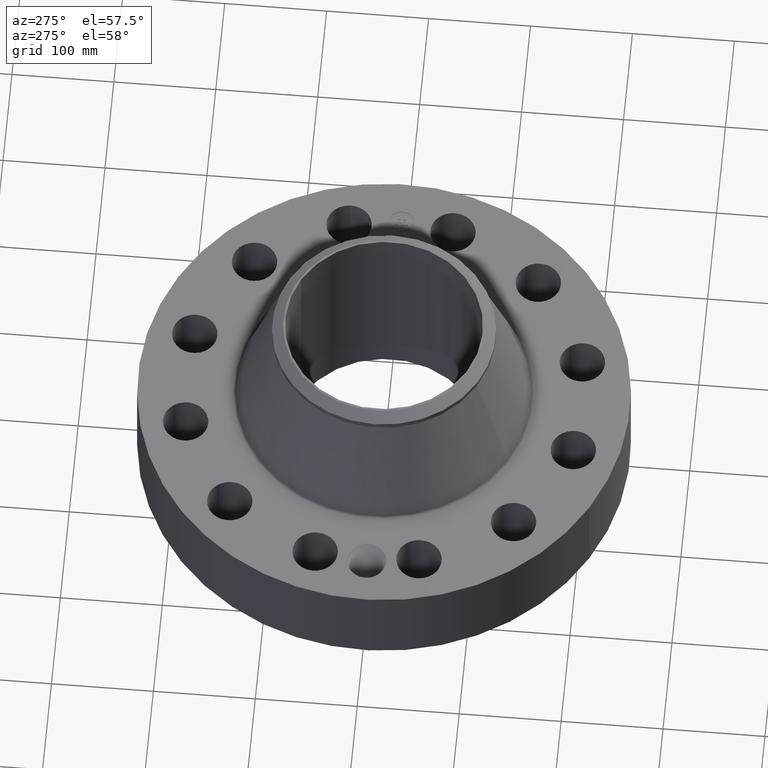
[diagram: clean part render]
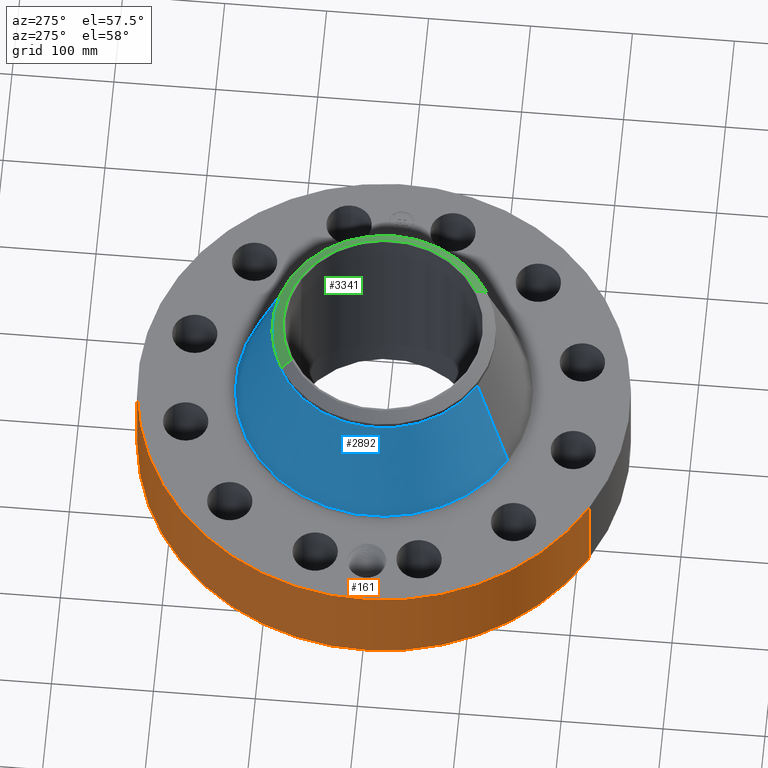
[diagram: same view with three faces highlighted in distinct colors, each labeled with its STEP entity id]
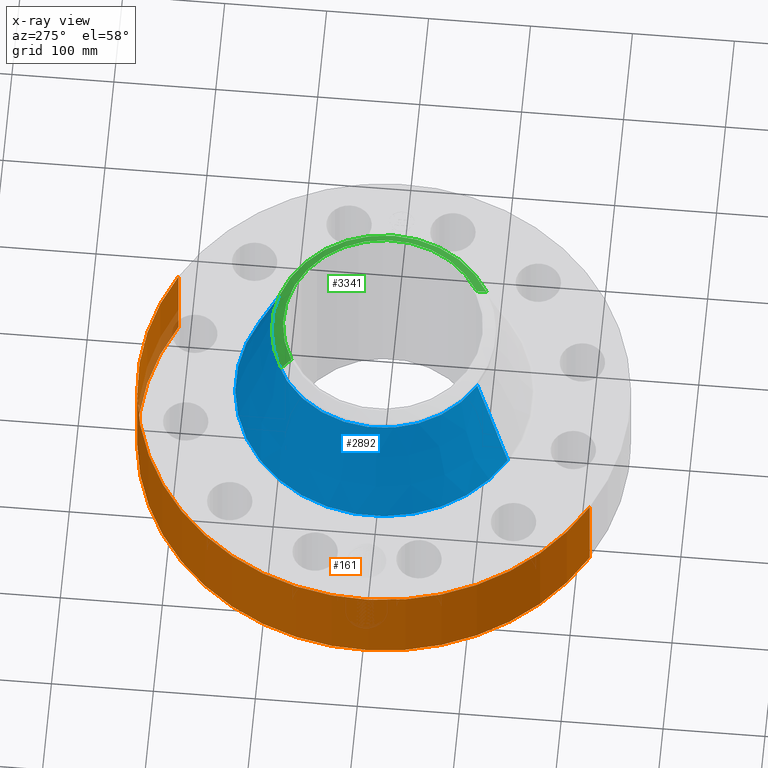
[diagram: x-ray of the same camera — body ghosted, the three highlighted faces saturated]
A machine part, auxiliary view with three faces highlighted in distinct colors.
The next image is the same camera in x-ray (body ghosted, the three faces saturated) — at least one of them is partly hidden behind the body in this view.
Their STEP definitions:

[orange] entity #161 — the highlighted cylindrical surface (partial cylindrical patch) has radius 241.3 mm, axis along (0, 0, -1).
#38=AXIS2_PLACEMENT_3D('Cylinder Axis2P3D',#35,#36,#37) ;
#42=AXIS2_PLACEMENT_3D('Circle Axis2P3D',#40,#41,$) ;
#58=AXIS2_PLACEMENT_3D('Circle Axis2P3D',#56,#57,$) ;
#35=CARTESIAN_POINT('Axis2P3D Location',(0.,0.,4.44000000002)) ;
#40=CARTESIAN_POINT('Axis2P3D Location',(0.,0.,0.250000000001)) ;
#44=CARTESIAN_POINT('Vertex',(-4.55454261676,-8.33703433799,0.250000000001)) ;
#46=CARTESIAN_POINT('Vertex',(4.55454261676,8.33703433799,0.250000000001)) ;
#49=CARTESIAN_POINT('Line Origine',(-4.55454261676,-8.33703433799,2.06000000001)) ;
#53=CARTESIAN_POINT('Vertex',(-4.55454261676,-8.33703433799,3.87000000002)) ;
#56=CARTESIAN_POINT('Axis2P3D Location',(0.,0.,3.87000000002)) ;
#60=CARTESIAN_POINT('Vertex',(4.55454261676,8.33703433799,3.87000000002)) ;
#63=CARTESIAN_POINT('Line Origine',(4.55454261676,8.33703433799,2.06000000001)) ;
#75=CARTESIAN_POINT('Control Point',(-0.0575325675528,9.49982578811,1.28940862591)) ;
#76=CARTESIAN_POINT('Control Point',(-0.0387617029256,9.49993946767,1.2925030616)) ;
#77=CARTESIAN_POINT('Control Point',(-0.0197405343413,9.49999853895,1.2940799501)) ;
#78=CARTESIAN_POINT('Control Point',(-0.000716129652359,9.49999997305,1.29411849914)) ;
#79=CARTESIAN_POINT('Vertex',(-0.0575195611824,9.49982611812,1.28941105279)) ;
#81=CARTESIAN_POINT('Vertex',(-0.000716015010135,9.49999997305,1.29411850959)) ;
#85=CARTESIAN_POINT('Control Point',(-0.0575194650207,9.49982586745,1.28941049641)) ;
#86=CARTESIAN_POINT('Control Point',(-0.097126363262,9.49958605594,1.28465850568)) ;
#87=CARTESIAN_POINT('Control Point',(-0.13600264662,9.49909360353,1.27268550158)) ;
#88=CARTESIAN_POINT('Control Point',(-0.171718061243,9.49844792101,1.25435913128)) ;
#89=CARTESIAN_POINT('Vertex',(-0.171718061243,9.49844792101,1.25435913128)) ;
#93=CARTESIAN_POINT('Control Point',(-0.0304002735868,9.49995135904,0.531143633136)) ;
#94=CARTESIAN_POINT('Control Point',(-0.0867716236334,9.49977096817,0.538305394622)) ;
#95=CARTESIAN_POINT('Control Point',(-0.141553163633,9.49917753609,0.555914995244)) ;
#96=CARTESIAN_POINT('Control Point',(-0.19202553703,9.49822518869,0.583478302421)) ;
#97=CARTESIAN_POINT('Control Point',(-0.26532511446,9.49641279305,0.642895462514)) ;
#98=CARTESIAN_POINT('Control Point',(-0.317440528995,9.49472459473,0.719316163241)) ;
#99=CARTESIAN_POINT('Control Point',(-0.334530416804,9.49412332696,0.751986425862)) ;
#100=CARTESIAN_POINT('Control Point',(-0.368476749395,9.4928757749,0.840222821003)) ;
#101=CARTESIAN_POINT('Control Point',(-0.37552640359,9.49256610225,0.934455389686)) ;
#102=CARTESIAN_POINT('Control Point',(-0.369385992424,9.49282227648,0.991999991286)) ;
#103=CARTESIAN_POINT('Control Point',(-0.339906533112,9.49399493766,1.09112721545)) ;
#104=CARTESIAN_POINT('Control Point',(-0.280285305403,9.49592560804,1.1742714273)) ;
#105=CARTESIAN_POINT('Control Point',(-0.248256653968,9.496854785,1.20690643494)) ;
#106=CARTESIAN_POINT('Control Point',(-0.211604005756,9.49772684141,1.23389277067)) ;
#107=CARTESIAN_POINT('Control Point',(-0.171718061243,9.49844792101,1.25435913128)) ;
#108=CARTESIAN_POINT('Vertex',(-0.0304002735868,9.49995135904,0.531143633136)) ;
#112=CARTESIAN_POINT('Control Point',(-0.0304002735868,9.49995135904,0.531143633136)) ;
#113=CARTESIAN_POINT('Control Point',(-0.0202611729211,9.49998380462,0.53086805011)) ;
#114=CARTESIAN_POINT('Control Point',(-0.0101166074945,9.50000000294,0.530945220321)) ;
#115=CARTESIAN_POINT('Control Point',(2.72878354617E-006,9.50000000004,0.531374667805)) ;
#116=CARTESIAN_POINT('Vertex',(2.72878353848E-006,9.50000000004,0.531374667805)) ;
#120=CARTESIAN_POINT('Control Point',(0.193159967405,9.49803607214,0.586433233683)) ;
#121=CARTESIAN_POINT('Control Point',(0.149212423448,9.49892982598,0.561467059971)) ;
#122=CARTESIAN_POINT('Control Point',(0.101158452121,9.49963677984,0.543581165943)) ;
#123=CARTESIAN_POINT('Control Point',(0.0508206520107,9.49999998544,0.53353129569)) ;
#124=CARTESIAN_POINT('Control Point',(2.72878354618E-006,9.50000000004,0.531374667805)) ;
#125=CARTESIAN_POINT('Vertex',(0.193159967405,9.49803607214,0.586433233683)) ;
#129=CARTESIAN_POINT('Control Point',(0.193159967405,9.49803607214,0.586433233683)) ;
#130=CARTESIAN_POINT('Control Point',(0.222119006571,9.49744713702,0.602884582402)) ;
#131=CARTESIAN_POINT('Control Point',(0.249411383344,9.49678168254,0.622217405821)) ;
#132=CARTESIAN_POINT('Control Point',(0.274632292672,9.49607319595,0.644255702022)) ;
#133=CARTESIAN_POINT('Control Point',(0.341385873271,9.49399594884,0.716105581289)) ;
#134=CARTESIAN_POINT('Control Point',(0.383874883576,9.49227878282,0.805901942668)) ;
#135=CARTESIAN_POINT('Control Point',(0.398800769092,9.49161188678,0.870351359399)) ;
#136=CARTESIAN_POINT('Control Point',(0.399486240302,9.49162271031,0.984725351259)) ;
#137=CARTESIAN_POINT('Control Point',(0.359254072448,9.49323070792,1.0894776776)) ;
#138=CARTESIAN_POINT('Control Point',(0.334931992888,9.49415713767,1.13095983019)) ;
#139=CARTESIAN_POINT('Control Point',(0.266159836531,9.49647544685,1.21445681121)) ;
#140=CARTESIAN_POINT('Control Point',(0.173480293448,9.49864536547,1.26890997348)) ;
#141=CARTESIAN_POINT('Control Point',(0.116677432545,9.49955881178,1.28863410109)) ;
#142=CARTESIAN_POINT('Control Point',(0.0579003419883,9.50000015767,1.29699293844)) ;
#143=CARTESIAN_POINT('Control Point',(-2.58579355178E-005,9.5,1.29415298432)) ;
#144=CARTESIAN_POINT('Vertex',(-2.58579355373E-005,9.5,1.29415298432)) ;
#148=CARTESIAN_POINT('Control Point',(-0.000716015000086,9.49999997305,1.29411850958)) ;
#149=CARTESIAN_POINT('Control Point',(-0.000370960587745,9.49999999906,1.29413606495)) ;
#150=CARTESIAN_POINT('Control Point',(-2.58579411674E-005,9.5,1.29415298432)) ;
#36=DIRECTION('Axis2P3D Direction',(0.,0.,-0.0393700787402)) ;
#37=DIRECTION('Axis2P3D XDirection',(0.0188750212049,0.0345504945626,0.)) ;
#41=DIRECTION('Axis2P3D Direction',(0.,0.,-0.0393700787402)) ;
#50=DIRECTION('Vector Direction',(0.,0.,-0.0393700787402)) ;
#57=DIRECTION('Axis2P3D Direction',(0.,0.,-0.0393700787402)) ;
#64=DIRECTION('Vector Direction',(0.,0.,-0.0393700787402)) ;
#51=VECTOR('Line Direction',#50,0.0393700787402) ;
#65=VECTOR('Line Direction',#64,0.0393700787402) ;
#69=ORIENTED_EDGE('',*,*,#48,.F.) ;
#70=ORIENTED_EDGE('',*,*,#55,.T.) ;
#71=ORIENTED_EDGE('',*,*,#62,.T.) ;
#72=ORIENTED_EDGE('',*,*,#67,.F.) ;
#153=ORIENTED_EDGE('',*,*,#83,.F.) ;
#154=ORIENTED_EDGE('',*,*,#91,.T.) ;
#155=ORIENTED_EDGE('',*,*,#110,.F.) ;
#156=ORIENTED_EDGE('',*,*,#118,.T.) ;
#157=ORIENTED_EDGE('',*,*,#127,.F.) ;
#158=ORIENTED_EDGE('',*,*,#146,.T.) ;
#159=ORIENTED_EDGE('',*,*,#151,.F.) ;
#160=FACE_BOUND('',#152,.T.) ;
#161=ADVANCED_FACE('PartBody',(#73,#160),#39,.T.) ;
#74=B_SPLINE_CURVE_WITH_KNOTS('',3,(#75,#76,#77,#78),.UNSPECIFIED.,.F.,.U.,(4,4),(4.41073259508,6.52131742471),.UNSPECIFIED.) ;
#84=B_SPLINE_CURVE_WITH_KNOTS('',3,(#85,#86,#87,#88),.UNSPECIFIED.,.F.,.U.,(4,4),(0.,4.48220722239),.UNSPECIFIED.) ;
#92=B_SPLINE_CURVE_WITH_KNOTS('',5,(#93,#94,#95,#96,#97,#98,#99,#100,#101,#102,#103,#104,#105,#106,#107),.UNSPECIFIED.,.F.,.U.,(6,3,3,3,6),(0.,9.87570583404,16.4487421089,26.8457131565,35.1883792365),.UNSPECIFIED.) ;
#111=B_SPLINE_CURVE_WITH_KNOTS('',3,(#112,#113,#114,#115),.UNSPECIFIED.,.F.,.U.,(4,4),(0.,1.05758898706),.UNSPECIFIED.) ;
#119=B_SPLINE_CURVE_WITH_KNOTS('',4,(#120,#121,#122,#123,#124),.UNSPECIFIED.,.F.,.U.,(5,5),(0.,7.08142307161),.UNSPECIFIED.) ;
#128=B_SPLINE_CURVE_WITH_KNOTS('',5,(#129,#130,#131,#132,#133,#134,#135,#136,#137,#138,#139,#140,#141,#142,#143),.UNSPECIFIED.,.F.,.U.,(6,3,3,3,6),(0.,5.83284034233,17.1177406424,25.5997496089,36.4273577683),.UNSPECIFIED.) ;
#147=B_SPLINE_CURVE_WITH_KNOTS('',2,(#148,#149,#150),.UNSPECIFIED.,.F.,.U.,(3,3),(1.04159308309,1.06739582116),.UNSPECIFIED.) ;
#43=CIRCLE('generated circle',#42,9.50000000004) ;
#59=CIRCLE('generated circle',#58,9.50000000004) ;
#39=CYLINDRICAL_SURFACE('generated cylinder',#38,9.50000000004) ;
#48=EDGE_CURVE('',#45,#47,#43,.T.) ;
#55=EDGE_CURVE('',#45,#54,#52,.F.) ;
#62=EDGE_CURVE('',#54,#61,#59,.T.) ;
#67=EDGE_CURVE('',#47,#61,#66,.F.) ;
#83=EDGE_CURVE('',#80,#82,#74,.T.) ;
#91=EDGE_CURVE('',#80,#90,#84,.T.) ;
#110=EDGE_CURVE('',#109,#90,#92,.T.) ;
#118=EDGE_CURVE('',#109,#117,#111,.T.) ;
#127=EDGE_CURVE('',#126,#117,#119,.T.) ;
#146=EDGE_CURVE('',#126,#145,#128,.T.) ;
#151=EDGE_CURVE('',#82,#145,#147,.T.) ;
#68=EDGE_LOOP('',(#69,#70,#71,#72)) ;
#152=EDGE_LOOP('',(#153,#154,#155,#156,#157,#158,#159)) ;
#73=FACE_OUTER_BOUND('',#68,.T.) ;
#52=LINE('Line',#49,#51) ;
#66=LINE('Line',#63,#65) ;
#45=VERTEX_POINT('',#44) ;
#47=VERTEX_POINT('',#46) ;
#54=VERTEX_POINT('',#53) ;
#61=VERTEX_POINT('',#60) ;
#80=VERTEX_POINT('',#79) ;
#82=VERTEX_POINT('',#81) ;
#90=VERTEX_POINT('',#89) ;
#109=VERTEX_POINT('',#108) ;
#117=VERTEX_POINT('',#116) ;
#126=VERTEX_POINT('',#125) ;
#145=VERTEX_POINT('',#144) ;

[blue] entity #2892 — the highlighted conical surface has half-angle 18.869 deg.
#2155=AXIS2_PLACEMENT_3D('Circle Axis2P3D',#2153,#2154,$) ;
#2853=AXIS2_PLACEMENT_3D('Cone Axis2P3D',#2850,#2851,#2852) ;
#2883=AXIS2_PLACEMENT_3D('Circle Axis2P3D',#2881,#2882,$) ;
#2131=CARTESIAN_POINT('Vertex',(2.74339313973,5.02174745811,3.95119062613)) ;
#2138=CARTESIAN_POINT('Vertex',(-2.74339313973,-5.02174745811,3.95119062613)) ;
#2153=CARTESIAN_POINT('Axis2P3D Location',(0.,0.,3.95119062613)) ;
#2850=CARTESIAN_POINT('Axis2P3D Location',(0.,0.,8.068617164)) ;
#2855=CARTESIAN_POINT('Line Origine',(2.40605716941,4.40425810634,6.00990389507)) ;
#2859=CARTESIAN_POINT('Vertex',(2.06872119909,3.78676875457,8.068617164)) ;
#2866=CARTESIAN_POINT('Vertex',(-2.06872119909,-3.78676875457,8.068617164)) ;
#2869=CARTESIAN_POINT('Line Origine',(-2.40605716941,-4.40425810634,6.00990389507)) ;
#2881=CARTESIAN_POINT('Axis2P3D Location',(0.,0.,8.068617164)) ;
#2154=DIRECTION('Axis2P3D Direction',(0.,0.,-0.0393700787402)) ;
#2851=DIRECTION('Axis2P3D Direction',(0.,0.,-0.0393700787402)) ;
#2852=DIRECTION('Axis2P3D XDirection',(-0.0188750212049,-0.0345504945626,0.)) ;
#2856=DIRECTION('Vector Direction',(0.00610439795833,0.0111740255112,-0.0372542692781)) ;
#2870=DIRECTION('Vector Direction',(-0.00610439795833,-0.0111740255112,-0.0372542692781)) ;
#2882=DIRECTION('Axis2P3D Direction',(0.,0.,-0.0393700787402)) ;
#2857=VECTOR('Line Direction',#2856,0.0393700787402) ;
#2871=VECTOR('Line Direction',#2870,0.0393700787402) ;
#2887=ORIENTED_EDGE('',*,*,#2157,.F.) ;
#2888=ORIENTED_EDGE('',*,*,#2873,.T.) ;
#2889=ORIENTED_EDGE('',*,*,#2885,.T.) ;
#2890=ORIENTED_EDGE('',*,*,#2861,.F.) ;
#2892=ADVANCED_FACE('PartBody',(#2891),#2854,.T.) ;
#2156=CIRCLE('generated circle',#2155,5.72225073308) ;
#2884=CIRCLE('generated circle',#2883,4.31500000002) ;
#2854=CONICAL_SURFACE('Cone',#2853,4.31500000002,0.329332474681) ;
#2157=EDGE_CURVE('',#2139,#2132,#2156,.T.) ;
#2861=EDGE_CURVE('',#2132,#2860,#2858,.F.) ;
#2873=EDGE_CURVE('',#2139,#2867,#2872,.F.) ;
#2885=EDGE_CURVE('',#2867,#2860,#2884,.T.) ;
#2886=EDGE_LOOP('',(#2887,#2888,#2889,#2890)) ;
#2891=FACE_OUTER_BOUND('',#2886,.T.) ;
#2858=LINE('Line',#2855,#2857) ;
#2872=LINE('Line',#2869,#2871) ;
#2132=VERTEX_POINT('',#2131) ;
#2139=VERTEX_POINT('',#2138) ;
#2860=VERTEX_POINT('',#2859) ;
#2867=VERTEX_POINT('',#2866) ;

[green] entity #3341 — the highlighted conical surface has half-angle 52.5 deg.
#2484=AXIS2_PLACEMENT_3D('Circle Axis2P3D',#2482,#2483,$) ;
#3286=AXIS2_PLACEMENT_3D('Cone Axis2P3D',#3283,#3284,#3285) ;
#3324=AXIS2_PLACEMENT_3D('Circle Axis2P3D',#3322,#3323,$) ;
#3331=AXIS2_PLACEMENT_3D('Circle Axis2P3D',#3329,#3330,$) ;
#2482=CARTESIAN_POINT('Axis2P3D Location',(0.,0.,8.63000000003)) ;
#2486=CARTESIAN_POINT('Vertex',(1.86555990835,-3.41488450635,8.63000000003)) ;
#2488=CARTESIAN_POINT('Vertex',(-1.86555990835,3.41488450635,8.63000000003)) ;
#3283=CARTESIAN_POINT('Axis2P3D Location',(0.,0.,8.63000000003)) ;
#3288=CARTESIAN_POINT('Line Origine',(1.96714055372,-3.60082663046,8.46741881824)) ;
#3292=CARTESIAN_POINT('Vertex',(2.06872119909,-3.78676875457,8.30483763645)) ;
#3295=CARTESIAN_POINT('Line Origine',(-1.96714055372,3.60082663046,8.46741881824)) ;
#3299=CARTESIAN_POINT('Vertex',(-2.06872119909,3.78676875457,8.30483763645)) ;
#3322=CARTESIAN_POINT('Axis2P3D Location',(0.,0.,8.30483763645)) ;
#3326=CARTESIAN_POINT('Vertex',(2.06872119909,3.78676875457,8.30483763645)) ;
#3329=CARTESIAN_POINT('Axis2P3D Location',(0.,0.,8.30483763645)) ;
#2483=DIRECTION('Axis2P3D Direction',(0.,0.,-0.0393700787402)) ;
#3284=DIRECTION('Axis2P3D Direction',(-0.,-0.,-0.0393700787402)) ;
#3285=DIRECTION('Axis2P3D XDirection',(-0.0188750212049,0.0345504945626,0.)) ;
#3289=DIRECTION('Vector Direction',(0.014974561121,-0.02741075027,-0.023966985394)) ;
#3296=DIRECTION('Vector Direction',(-0.014974561121,0.02741075027,-0.023966985394)) ;
#3323=DIRECTION('Axis2P3D Direction',(0.,0.,-0.0393700787402)) ;
#3330=DIRECTION('Axis2P3D Direction',(0.,0.,-0.0393700787402)) ;
#3290=VECTOR('Line Direction',#3289,0.0393700787402) ;
#3297=VECTOR('Line Direction',#3296,0.0393700787402) ;
#3335=ORIENTED_EDGE('',*,*,#3301,.F.) ;
#3336=ORIENTED_EDGE('',*,*,#2490,.F.) ;
#3337=ORIENTED_EDGE('',*,*,#3294,.T.) ;
#3338=ORIENTED_EDGE('',*,*,#3328,.T.) ;
#3339=ORIENTED_EDGE('',*,*,#3333,.F.) ;
#3341=ADVANCED_FACE('PartBody',(#3340),#3287,.T.) ;
#2485=CIRCLE('generated circle',#2484,3.8912401575) ;
#3325=CIRCLE('generated circle',#3324,4.31500000002) ;
#3332=CIRCLE('generated circle',#3331,4.31500000002) ;
#3287=CONICAL_SURFACE('Cone',#3286,3.8912401575,0.916297857297) ;
#2490=EDGE_CURVE('',#2487,#2489,#2485,.F.) ;
#3294=EDGE_CURVE('',#2487,#3293,#3291,.T.) ;
#3301=EDGE_CURVE('',#2489,#3300,#3298,.T.) ;
#3328=EDGE_CURVE('',#3293,#3327,#3325,.F.) ;
#3333=EDGE_CURVE('',#3300,#3327,#3332,.T.) ;
#3334=EDGE_LOOP('',(#3335,#3336,#3337,#3338,#3339)) ;
#3340=FACE_OUTER_BOUND('',#3334,.T.) ;
#3291=LINE('Line',#3288,#3290) ;
#3298=LINE('Line',#3295,#3297) ;
#2487=VERTEX_POINT('',#2486) ;
#2489=VERTEX_POINT('',#2488) ;
#3293=VERTEX_POINT('',#3292) ;
#3300=VERTEX_POINT('',#3299) ;
#3327=VERTEX_POINT('',#3326) ;